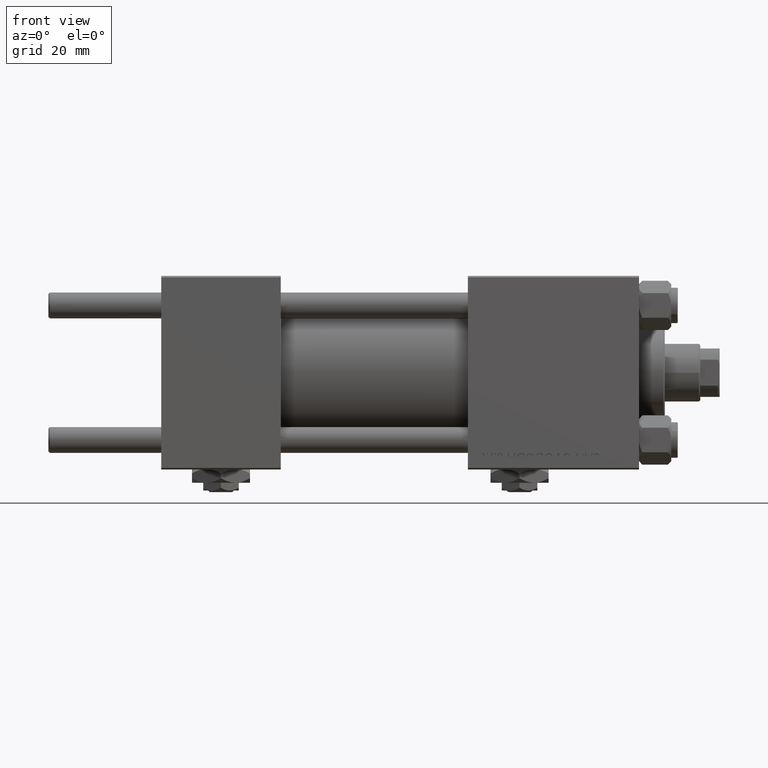
[diagram: clean part render]
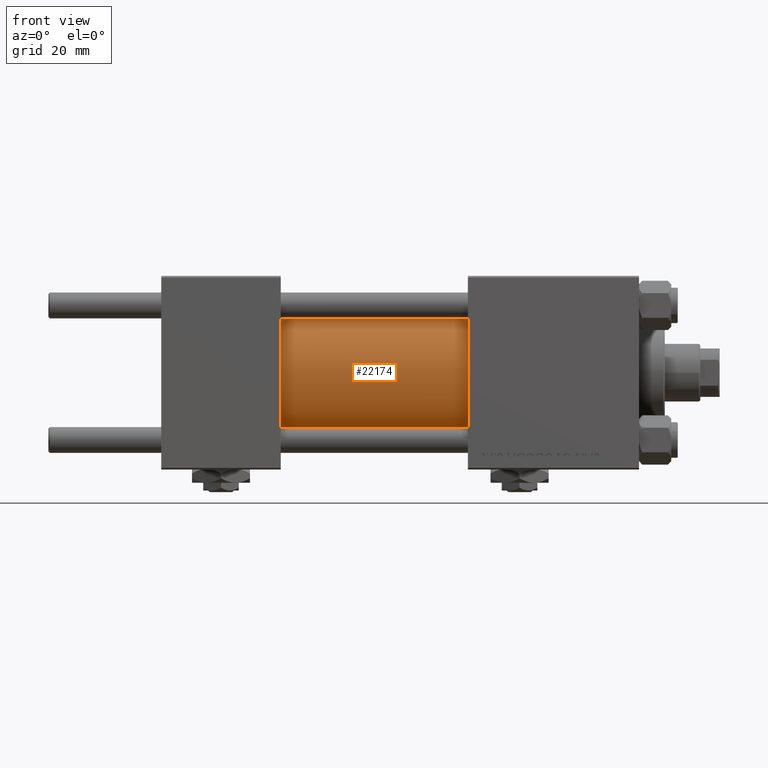
[diagram: same view with one face highlighted and labeled with its STEP entity id]
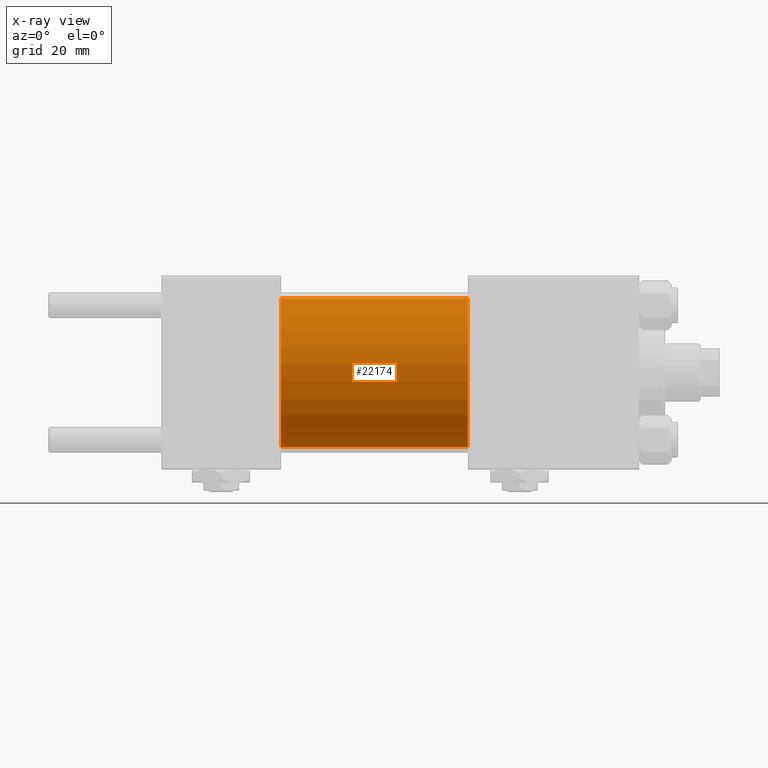
[diagram: x-ray of the same camera — body ghosted, the highlighted face saturated]
A machine part, front view. The second image highlights one B-rep face of the part: STEP entity #22174.
The next image is the same camera in x-ray: the body ghosted, the highlighted face saturated — about 0% of this face is hidden behind the body in this view.
In plain terms, the highlighted cylindrical surface (partial cylindrical patch) has radius 23 mm, axis along (-1, -0, -0).
Its self-contained STEP definition (entity closure, byte-faithful):
#480 = CARTESIAN_POINT ( 'NONE',  ( 37.00000000000000000, 0.000000000000000000, 23.00000000000000000 ) ) ;
#742 = VERTEX_POINT ( 'NONE', #25737 ) ;
#2051 = ORIENTED_EDGE ( 'NONE', *, *, #19093, .T. ) ;
#2347 = EDGE_LOOP ( 'NONE', ( #23639, #49520, #34056, #2051 ) ) ;
#3529 = DIRECTION ( 'NONE',  ( -1.000000000000000000, -0.000000000000000000, -0.000000000000000000 ) ) ;
#4896 = CARTESIAN_POINT ( 'NONE',  ( 37.00000000000000000, 0.000000000000000000, 0.000000000000000000 ) ) ;
#7655 = DIRECTION ( 'NONE',  ( 0.000000000000000000, 0.000000000000000000, -1.000000000000000000 ) ) ;
#9850 = VECTOR ( 'NONE', #3529, 1000.000000000000000 ) ;
#9916 = FACE_OUTER_BOUND ( 'NONE', #2347, .T. ) ;
#13289 = DIRECTION ( 'NONE',  ( 0.000000000000000000, 0.000000000000000000, 1.000000000000000000 ) ) ;
#14593 = VERTEX_POINT ( 'NONE', #35393 ) ;
#14743 = AXIS2_PLACEMENT_3D ( 'NONE', #4896, #20889, #13289 ) ;
#15605 = LINE ( 'NONE', #43181, #9850 ) ;
#17005 = DIRECTION ( 'NONE',  ( -1.000000000000000000, -0.000000000000000000, -0.000000000000000000 ) ) ;
#17171 = LINE ( 'NONE', #17427, #40762 ) ;
#17427 = CARTESIAN_POINT ( 'NONE',  ( 95.00000000000000000, 2.816687638038911957E-15, -23.00000000000000000 ) ) ;
#19093 = EDGE_CURVE ( 'NONE', #21152, #742, #51626, .T. ) ;
#20889 = DIRECTION ( 'NONE',  ( 1.000000000000000000, -0.000000000000000000, 0.000000000000000000 ) ) ;
#21152 = VERTEX_POINT ( 'NONE', #480 ) ;
#21990 = CARTESIAN_POINT ( 'NONE',  ( 95.00000000000000000, 0.000000000000000000, 0.000000000000000000 ) ) ;
#22174 = ADVANCED_FACE ( 'NONE', ( #9916 ), #28819, .T. ) ;
#23138 = AXIS2_PLACEMENT_3D ( 'NONE', #21990, #17005, #24893 ) ;
#23639 = ORIENTED_EDGE ( 'NONE', *, *, #23734, .F. ) ;
#23734 = EDGE_CURVE ( 'NONE', #38926, #742, #17171, .T. ) ;
#24893 = DIRECTION ( 'NONE',  ( 0.000000000000000000, 0.000000000000000000, 1.000000000000000000 ) ) ;
#25737 = CARTESIAN_POINT ( 'NONE',  ( 37.00000000000000000, 2.816687638038911957E-15, -23.00000000000000000 ) ) ;
#26812 = EDGE_CURVE ( 'NONE', #14593, #21152, #15605, .T. ) ;
#28819 = CYLINDRICAL_SURFACE ( 'NONE', #23138, 23.00000000000000000 ) ;
#30272 = AXIS2_PLACEMENT_3D ( 'NONE', #46802, #39178, #7655 ) ;
#33439 = CARTESIAN_POINT ( 'NONE',  ( 95.00000000000000000, 2.816687638038911957E-15, -23.00000000000000000 ) ) ;
#33442 = DIRECTION ( 'NONE',  ( -1.000000000000000000, -0.000000000000000000, -0.000000000000000000 ) ) ;
#33590 = CIRCLE ( 'NONE', #30272, 23.00000000000000000 ) ;
#34056 = ORIENTED_EDGE ( 'NONE', *, *, #26812, .T. ) ;
#35393 = CARTESIAN_POINT ( 'NONE',  ( 95.00000000000000000, 0.000000000000000000, 23.00000000000000000 ) ) ;
#38926 = VERTEX_POINT ( 'NONE', #33439 ) ;
#39178 = DIRECTION ( 'NONE',  ( 1.000000000000000000, 0.000000000000000000, 0.000000000000000000 ) ) ;
#40762 = VECTOR ( 'NONE', #33442, 1000.000000000000000 ) ;
#43181 = CARTESIAN_POINT ( 'NONE',  ( 95.00000000000000000, 0.000000000000000000, 23.00000000000000000 ) ) ;
#46802 = CARTESIAN_POINT ( 'NONE',  ( 95.00000000000000000, 0.000000000000000000, 0.000000000000000000 ) ) ;
#49520 = ORIENTED_EDGE ( 'NONE', *, *, #50241, .F. ) ;
#50241 = EDGE_CURVE ( 'NONE', #14593, #38926, #33590, .T. ) ;
#51626 = CIRCLE ( 'NONE', #14743, 23.00000000000000000 ) ;